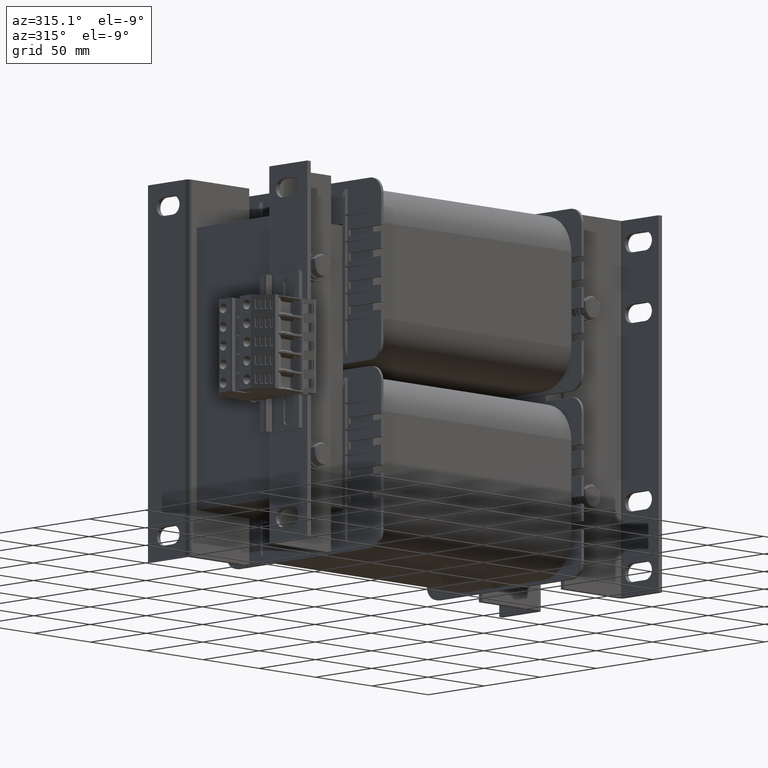
[diagram: clean part render]
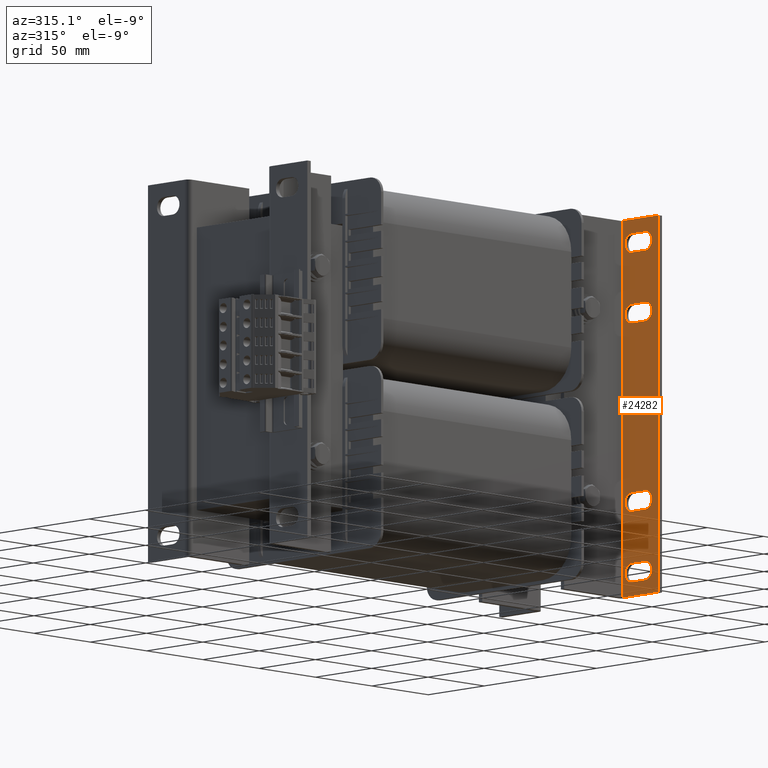
[diagram: same view with one face highlighted and labeled with its STEP entity id]
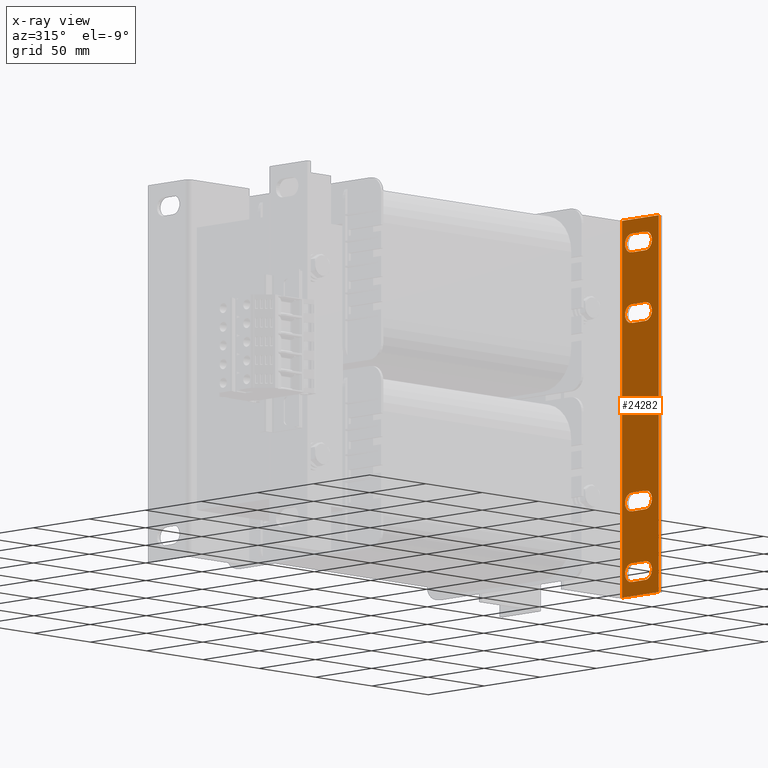
[diagram: x-ray of the same camera — body ghosted, the highlighted face saturated]
A machine part, auxiliary view. The second image highlights one B-rep face of the part: STEP entity #24282.
The next image is the same camera in x-ray: the body ghosted, the highlighted face saturated — about 0% of this face is hidden behind the body in this view.
In plain terms, the highlighted planar face has unit normal (-1, 0, -0).
Its self-contained STEP definition (entity closure, byte-faithful):
#1025=FACE_BOUND('',#3763,.T.);
#1026=FACE_BOUND('',#3764,.T.);
#1027=FACE_BOUND('',#3765,.T.);
#1028=FACE_BOUND('',#3766,.T.);
#1110=CIRCLE('',#25932,6.00000000000001);
#1112=CIRCLE('',#25936,6.00000000000001);
#1114=CIRCLE('',#25940,6.);
#1116=CIRCLE('',#25944,6.);
#1118=CIRCLE('',#25948,6.);
#1120=CIRCLE('',#25952,6.);
#1122=CIRCLE('',#25956,6.);
#1124=CIRCLE('',#25960,6.);
#2400=FACE_OUTER_BOUND('',#3762,.T.);
#3762=EDGE_LOOP('',(#16372,#16373,#16374,#16375));
#3763=EDGE_LOOP('',(#16376,#16377,#16378,#16379));
#3764=EDGE_LOOP('',(#16380,#16381,#16382,#16383));
#3765=EDGE_LOOP('',(#16384,#16385,#16386,#16387));
#3766=EDGE_LOOP('',(#16388,#16389,#16390,#16391));
#5190=LINE('',#35368,#7779);
#5193=LINE('',#35377,#7782);
#5198=LINE('',#35392,#7787);
#5201=LINE('',#35401,#7790);
#5206=LINE('',#35416,#7795);
#5209=LINE('',#35425,#7798);
#5214=LINE('',#35440,#7803);
#5217=LINE('',#35449,#7806);
#5221=LINE('',#35463,#7810);
#5224=LINE('',#35469,#7813);
#5225=LINE('',#35471,#7814);
#5226=LINE('',#35472,#7815);
#7779=VECTOR('',#28256,10.);
#7782=VECTOR('',#28267,10.);
#7787=VECTOR('',#28280,10.);
#7790=VECTOR('',#28291,10.);
#7795=VECTOR('',#28304,10.);
#7798=VECTOR('',#28315,10.);
#7803=VECTOR('',#28328,10.);
#7806=VECTOR('',#28339,10.);
#7810=VECTOR('',#28351,10.);
#7813=VECTOR('',#28356,10.);
#7814=VECTOR('',#28357,10.);
#7815=VECTOR('',#28358,10.);
#10362=VERTEX_POINT('',#35358);
#10363=VERTEX_POINT('',#35360);
#10365=VERTEX_POINT('',#35366);
#10367=VERTEX_POINT('',#35372);
#10370=VERTEX_POINT('',#35382);
#10371=VERTEX_POINT('',#35384);
#10373=VERTEX_POINT('',#35390);
#10375=VERTEX_POINT('',#35396);
#10378=VERTEX_POINT('',#35406);
#10379=VERTEX_POINT('',#35408);
#10381=VERTEX_POINT('',#35414);
#10383=VERTEX_POINT('',#35420);
#10386=VERTEX_POINT('',#35430);
#10387=VERTEX_POINT('',#35432);
#10389=VERTEX_POINT('',#35438);
#10391=VERTEX_POINT('',#35444);
#10396=VERTEX_POINT('',#35460);
#10397=VERTEX_POINT('',#35462);
#10399=VERTEX_POINT('',#35468);
#10400=VERTEX_POINT('',#35470);
#12673=EDGE_CURVE('',#10363,#10362,#1110,.T.);
#12677=EDGE_CURVE('',#10362,#10365,#5190,.T.);
#12680=EDGE_CURVE('',#10365,#10367,#1112,.T.);
#12682=EDGE_CURVE('',#10367,#10363,#5193,.T.);
#12685=EDGE_CURVE('',#10371,#10370,#1114,.T.);
#12689=EDGE_CURVE('',#10370,#10373,#5198,.T.);
#12692=EDGE_CURVE('',#10373,#10375,#1116,.T.);
#12694=EDGE_CURVE('',#10375,#10371,#5201,.T.);
#12697=EDGE_CURVE('',#10379,#10378,#1118,.T.);
#12701=EDGE_CURVE('',#10378,#10381,#5206,.T.);
#12704=EDGE_CURVE('',#10381,#10383,#1120,.T.);
#12706=EDGE_CURVE('',#10383,#10379,#5209,.T.);
#12709=EDGE_CURVE('',#10387,#10386,#1122,.T.);
#12713=EDGE_CURVE('',#10386,#10389,#5214,.T.);
#12716=EDGE_CURVE('',#10389,#10391,#1124,.T.);
#12718=EDGE_CURVE('',#10391,#10387,#5217,.T.);
#12724=EDGE_CURVE('',#10396,#10397,#5221,.T.);
#12727=EDGE_CURVE('',#10396,#10399,#5224,.T.);
#12728=EDGE_CURVE('',#10399,#10400,#5225,.T.);
#12729=EDGE_CURVE('',#10400,#10397,#5226,.T.);
#16372=ORIENTED_EDGE('',*,*,#12727,.T.);
#16373=ORIENTED_EDGE('',*,*,#12728,.T.);
#16374=ORIENTED_EDGE('',*,*,#12729,.T.);
#16375=ORIENTED_EDGE('',*,*,#12724,.F.);
#16376=ORIENTED_EDGE('',*,*,#12673,.T.);
#16377=ORIENTED_EDGE('',*,*,#12677,.T.);
#16378=ORIENTED_EDGE('',*,*,#12680,.T.);
#16379=ORIENTED_EDGE('',*,*,#12682,.T.);
#16380=ORIENTED_EDGE('',*,*,#12685,.T.);
#16381=ORIENTED_EDGE('',*,*,#12689,.T.);
#16382=ORIENTED_EDGE('',*,*,#12692,.T.);
#16383=ORIENTED_EDGE('',*,*,#12694,.T.);
#16384=ORIENTED_EDGE('',*,*,#12697,.T.);
#16385=ORIENTED_EDGE('',*,*,#12701,.T.);
#16386=ORIENTED_EDGE('',*,*,#12704,.T.);
#16387=ORIENTED_EDGE('',*,*,#12706,.T.);
#16388=ORIENTED_EDGE('',*,*,#12709,.T.);
#16389=ORIENTED_EDGE('',*,*,#12713,.T.);
#16390=ORIENTED_EDGE('',*,*,#12716,.T.);
#16391=ORIENTED_EDGE('',*,*,#12718,.T.);
#23433=PLANE('',#25966);
#24282=ADVANCED_FACE('',(#2400,#1025,#1026,#1027,#1028),#23433,.T.);
#25932=AXIS2_PLACEMENT_3D('',#35361,#28249,#28250);
#25936=AXIS2_PLACEMENT_3D('',#35374,#28262,#28263);
#25940=AXIS2_PLACEMENT_3D('',#35385,#28273,#28274);
#25944=AXIS2_PLACEMENT_3D('',#35398,#28286,#28287);
#25948=AXIS2_PLACEMENT_3D('',#35409,#28297,#28298);
#25952=AXIS2_PLACEMENT_3D('',#35422,#28310,#28311);
#25956=AXIS2_PLACEMENT_3D('',#35433,#28321,#28322);
#25960=AXIS2_PLACEMENT_3D('',#35446,#28334,#28335);
#25966=AXIS2_PLACEMENT_3D('',#35467,#28354,#28355);
#28249=DIRECTION('center_axis',(-1.,1.6053061929773E-15,2.9546640537834E-16));
#28250=DIRECTION('ref_axis',(0.,-4.38181919739341E-31,-1.));
#28256=DIRECTION('',(1.6053061929773E-15,1.,-4.75266105871134E-31));
#28262=DIRECTION('center_axis',(-1.,1.6053061929773E-15,2.9546640537834E-16));
#28263=DIRECTION('ref_axis',(1.64346021921044E-30,1.11022302462515E-15,
1.));
#28267=DIRECTION('',(-1.6053061929773E-15,-1.,4.75266105871134E-31));
#28273=DIRECTION('center_axis',(-1.,1.6053061929773E-15,2.9546640537834E-16));
#28274=DIRECTION('ref_axis',(0.,-4.38181919739341E-31,-1.));
#28280=DIRECTION('',(1.6053061929773E-15,1.,-4.75266105871134E-31));
#28286=DIRECTION('center_axis',(-1.,1.6053061929773E-15,2.9546640537834E-16));
#28287=DIRECTION('ref_axis',(-1.10933564796705E-30,-7.40148683083437E-16,
1.));
#28291=DIRECTION('',(-1.6053061929773E-15,-1.,4.75266105871134E-31));
#28297=DIRECTION('center_axis',(-1.,1.6053061929773E-15,2.9546640537834E-16));
#28298=DIRECTION('ref_axis',(0.,-4.38181919739341E-31,-1.));
#28304=DIRECTION('',(1.6053061929773E-15,1.,-4.75266105871134E-31));
#28310=DIRECTION('center_axis',(-1.,1.6053061929773E-15,2.9546640537834E-16));
#28311=DIRECTION('ref_axis',(0.,4.38181919739341E-31,1.));
#28315=DIRECTION('',(-1.6053061929773E-15,-1.,4.75266105871134E-31));
#28321=DIRECTION('center_axis',(-1.,1.6053061929773E-15,2.9546640537834E-16));
#28322=DIRECTION('ref_axis',(-3.7007434154172E-16,-7.40148683083438E-16,
-1.));
#28328=DIRECTION('',(1.6053061929773E-15,1.,-7.40148683083438E-16));
#28334=DIRECTION('center_axis',(-1.,1.6053061929773E-15,2.9546640537834E-16));
#28335=DIRECTION('ref_axis',(3.7007434154172E-16,7.40148683083437E-16,1.));
#28339=DIRECTION('',(-1.6053061929773E-15,-1.,6.47630097698008E-16));
#28351=DIRECTION('',(1.52095144196648E-15,1.,-2.96059473233376E-16));
#28354=DIRECTION('center_axis',(1.,-1.6053061929773E-15,-2.9546640537834E-16));
#28355=DIRECTION('ref_axis',(2.95466405378341E-16,2.96059473233375E-16,
1.));
#28356=DIRECTION('',(-2.9546640537834E-16,0.,-1.));
#28357=DIRECTION('',(1.52095144196648E-15,1.,3.62456373955937E-16));
#28358=DIRECTION('',(2.96059473233375E-16,0.,1.));
#35358=CARTESIAN_POINT('',(-50.9999999999999,12.,231.));
#35360=CARTESIAN_POINT('',(-50.9999999999999,12.,219.));
#35361=CARTESIAN_POINT('Origin',(-51.,12.,225.));
#35366=CARTESIAN_POINT('',(-50.9999999999999,24.,231.));
#35368=CARTESIAN_POINT('',(-50.9999999999999,21.1602876713083,231.));
#35372=CARTESIAN_POINT('',(-50.9999999999999,24.,219.));
#35374=CARTESIAN_POINT('Origin',(-50.9999999999999,24.,225.));
#35377=CARTESIAN_POINT('',(-50.9999999999999,15.1602876713083,219.));
#35382=CARTESIAN_POINT('',(-51.,12.,66.));
#35384=CARTESIAN_POINT('',(-51.,12.,54.));
#35385=CARTESIAN_POINT('Origin',(-51.,12.,60.));
#35390=CARTESIAN_POINT('',(-51.,24.,66.));
#35392=CARTESIAN_POINT('',(-51.,21.1602876713083,66.));
#35396=CARTESIAN_POINT('',(-51.,24.,54.));
#35398=CARTESIAN_POINT('Origin',(-50.9999999999999,24.,60.));
#35401=CARTESIAN_POINT('',(-51.,15.1602876713083,54.));
#35406=CARTESIAN_POINT('',(-50.9999999999999,12.,186.));
#35408=CARTESIAN_POINT('',(-50.9999999999999,12.,174.));
#35409=CARTESIAN_POINT('Origin',(-51.,12.,180.));
#35414=CARTESIAN_POINT('',(-50.9999999999999,24.,186.));
#35416=CARTESIAN_POINT('',(-50.9999999999999,21.1602876713083,186.));
#35420=CARTESIAN_POINT('',(-50.9999999999999,24.,174.));
#35422=CARTESIAN_POINT('Origin',(-50.9999999999999,24.,180.));
#35425=CARTESIAN_POINT('',(-50.9999999999999,15.1602876713083,174.));
#35430=CARTESIAN_POINT('',(-51.,12.,21.));
#35432=CARTESIAN_POINT('',(-51.,12.,9.));
#35433=CARTESIAN_POINT('Origin',(-51.,12.,15.));
#35438=CARTESIAN_POINT('',(-51.,24.,21.));
#35440=CARTESIAN_POINT('',(-51.,21.1602876713083,21.));
#35444=CARTESIAN_POINT('',(-51.,24.,8.99999999999999));
#35446=CARTESIAN_POINT('Origin',(-51.,24.,15.));
#35449=CARTESIAN_POINT('',(-51.,15.1602876713083,9.));
#35460=CARTESIAN_POINT('',(-50.9999999999999,3.5,240.));
#35462=CARTESIAN_POINT('',(-50.9999999999999,36.,240.));
#35463=CARTESIAN_POINT('',(-50.9999999999999,0.641150685233285,240.));
#35467=CARTESIAN_POINT('Origin',(-50.9999999999999,18.3205753426166,120.));
#35468=CARTESIAN_POINT('',(-51.,3.5,1.92438657601686E-15));
#35469=CARTESIAN_POINT('',(-51.,3.5,120.));
#35470=CARTESIAN_POINT('',(-50.9999999999999,36.,4.77874056925065E-15));
#35471=CARTESIAN_POINT('',(-51.,0.641150685233285,8.881784197001E-16));
#35472=CARTESIAN_POINT('',(-50.9999999999999,36.,4.77874056925065E-15));